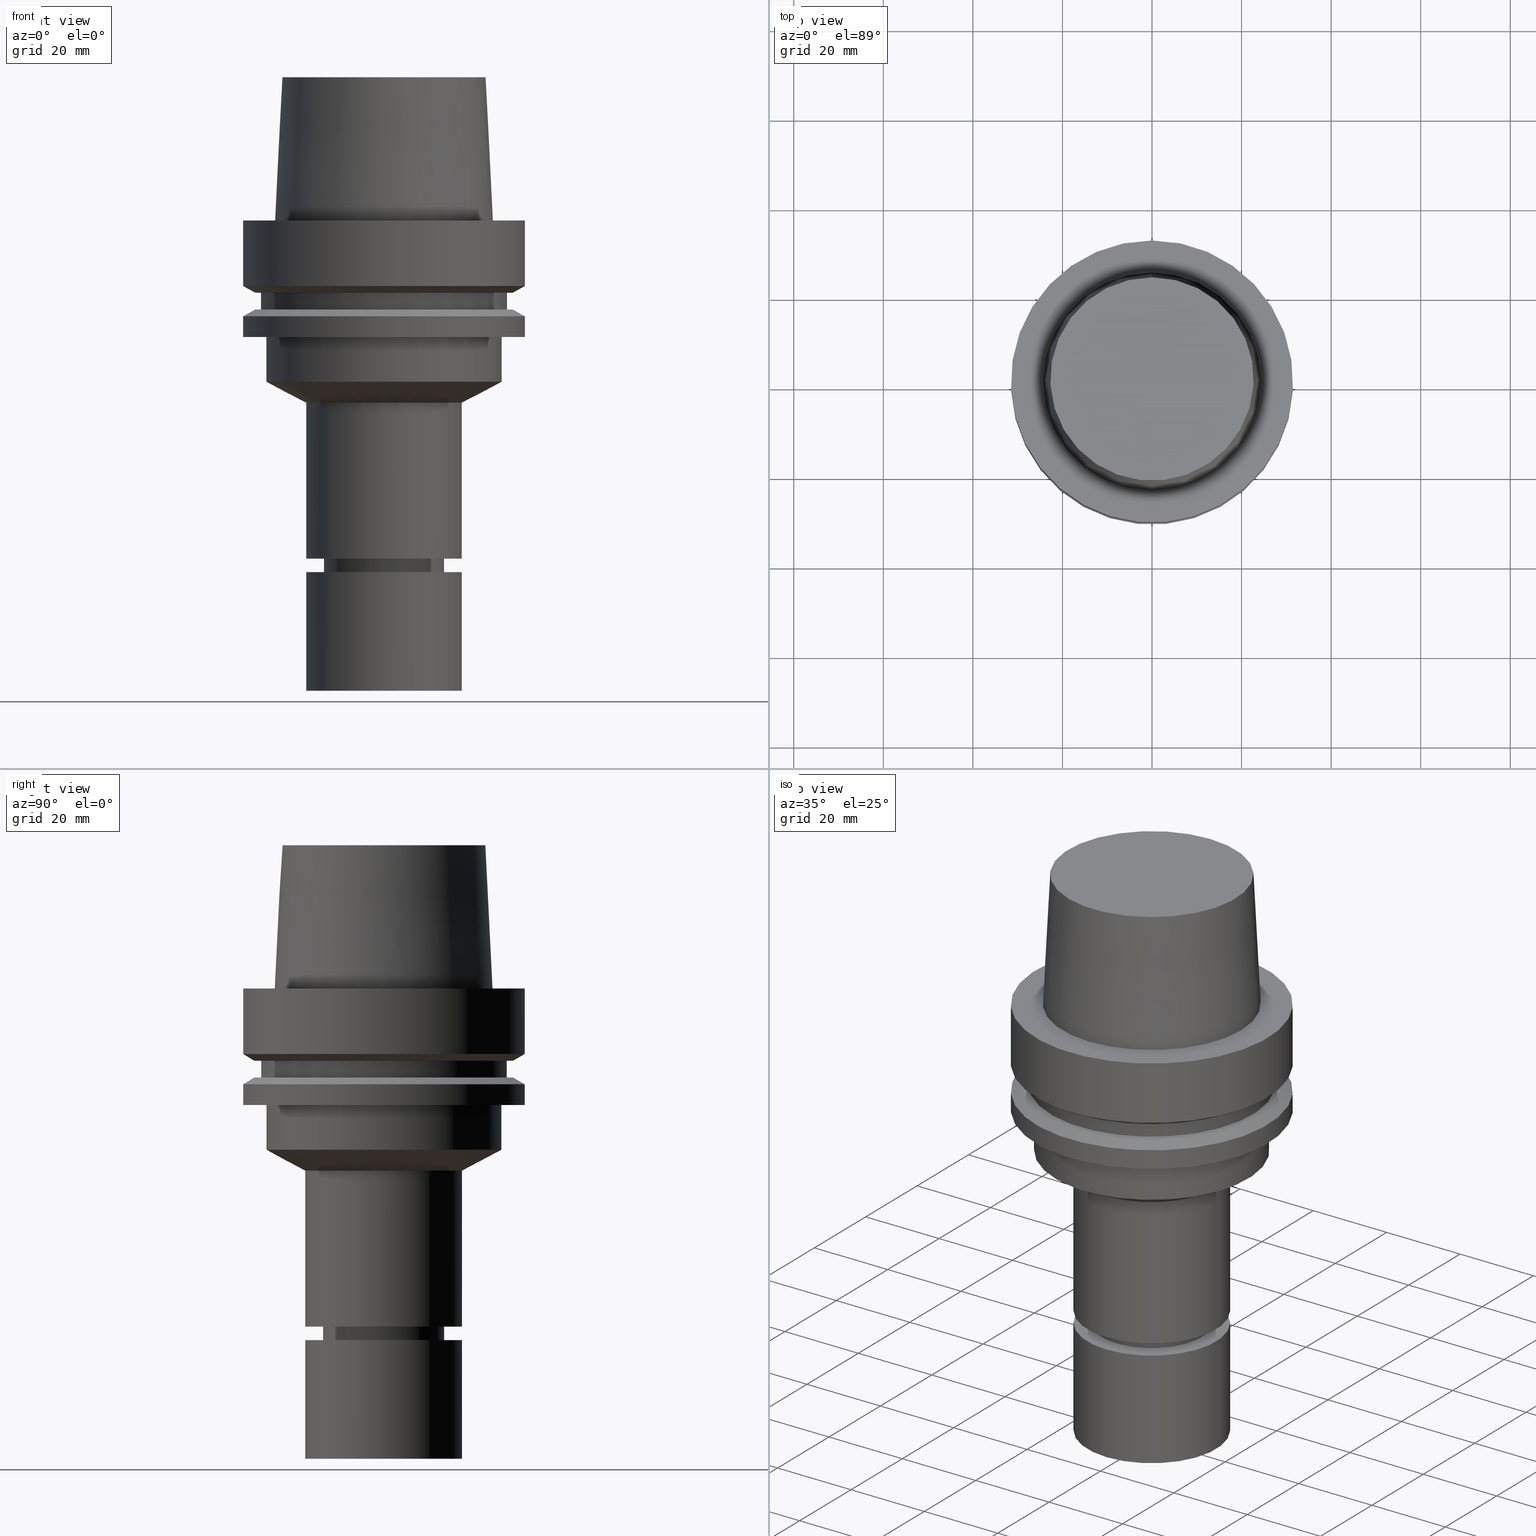
[diagram: canonical four-view strip — front | top / right | iso, engineering-drawing reading convention]
A machine part, canonical four-view strip (front | top / right | iso — engineering-drawing reading convention). The complete STEP part file that produces these views, byte-faithful:
ISO-10303-21;
HEADER;
FILE_DESCRIPTION((''),'1');
FILE_NAME('V:/90_\X2\53D65F9730C730FC30BF\X0\/00_\X2\6DE18DEF30C730FC30BF\X0\/ALL/HSK-BKUS\X2\52A05DE556F3\X0\_201801/HSK-A63-MEGAER/HSK-A63-MEGAER20-105NL.stp','2018-02-01T02:42:17',(''),(''),'Spatial Interop R21 SP3','Kubotek KeyCreator 2011 V10.0.2 (22737)',' ');
FILE_SCHEMA(('automotive_design'));
ENDSEC;
DATA;
#1=MECHANICAL_DESIGN_GEOMETRIC_PRESENTATION_REPRESENTATION(' ',(#14,#15,#16,#17,#18,#19,#20,#21,#22,#23,#24,#25,#26,#27,#28,#29,#30,#31,#32,#33,#34,#35,#36,#37,#38,#39,#40,#41,#42,#43,#44,#45,#46,#47,#48,#49,#50,#51,#52,#53,#54,#55,#56,#57,#58,#59),#10);
#2=PRODUCT_DEFINITION_CONTEXT('',#60,'design');
#3=APPLICATION_PROTOCOL_DEFINITION('INTERNATIONAL STANDARD','automotive_design',1994,#60);
#4=PRODUCT_CATEGORY_RELATIONSHIP('NONE','NONE',#61,#62);
#5=SHAPE_DEFINITION_REPRESENTATION(#63,#64);
#6=PRODUCT_DEFINITION_CONTEXT('',#65,'design');
#7=APPLICATION_PROTOCOL_DEFINITION('INTERNATIONAL STANDARD','automotive_design',1994,#65);
#8=PRODUCT_CATEGORY_RELATIONSHIP('NONE','NONE',#66,#67);
#9=SHAPE_DEFINITION_REPRESENTATION(#68,#69);
#10= (GEOMETRIC_REPRESENTATION_CONTEXT(3)GLOBAL_UNCERTAINTY_ASSIGNED_CONTEXT((#72))GLOBAL_UNIT_ASSIGNED_CONTEXT((#74,#75,#76))REPRESENTATION_CONTEXT('NONE','WORKSPACE'));
#14=STYLED_ITEM('',(#78,#79),#80);
#15=STYLED_ITEM('',(#81,#82),#83);
#16=STYLED_ITEM('',(#84,#85),#86);
#17=STYLED_ITEM('',(#87,#88),#89);
#18=STYLED_ITEM('',(#90,#91),#92);
#19=STYLED_ITEM('',(#93),#94);
#20=STYLED_ITEM('',(#95,#96),#97);
#21=STYLED_ITEM('',(#98,#99),#100);
#22=STYLED_ITEM('',(#101),#102);
#23=STYLED_ITEM('',(#103),#104);
#24=STYLED_ITEM('',(#105,#106),#107);
#25=STYLED_ITEM('',(#108),#109);
#26=STYLED_ITEM('',(#110),#111);
#27=STYLED_ITEM('',(#112),#113);
#28=STYLED_ITEM('',(#114),#115);
#29=STYLED_ITEM('',(#116,#117),#118);
#30=STYLED_ITEM('',(#119,#120),#121);
#31=STYLED_ITEM('',(#122),#123);
#32=STYLED_ITEM('',(#124,#125),#126);
#33=STYLED_ITEM('',(#127,#128),#129);
#34=STYLED_ITEM('',(#130,#131),#132);
#35=STYLED_ITEM('',(#133,#134),#135);
#36=STYLED_ITEM('',(#136,#137),#138);
#37=STYLED_ITEM('',(#139,#140),#141);
#38=STYLED_ITEM('',(#142,#143),#144);
#39=STYLED_ITEM('',(#145,#146),#147);
#40=STYLED_ITEM('',(#148),#149);
#41=STYLED_ITEM('',(#150),#151);
#42=STYLED_ITEM('',(#152),#153);
#43=STYLED_ITEM('',(#154,#155),#156);
#44=STYLED_ITEM('',(#157),#158);
#45=STYLED_ITEM('',(#159),#160);
#46=STYLED_ITEM('',(#161),#162);
#47=STYLED_ITEM('',(#163,#164),#165);
#48=STYLED_ITEM('',(#166,#167),#168);
#49=STYLED_ITEM('',(#169),#170);
#50=STYLED_ITEM('',(#171,#172),#173);
#51=STYLED_ITEM('',(#174),#175);
#52=STYLED_ITEM('',(#176),#177);
#53=STYLED_ITEM('',(#178,#179),#180);
#54=STYLED_ITEM('',(#181),#182);
#55=STYLED_ITEM('',(#183),#184);
#56=STYLED_ITEM('',(#185),#186);
#57=STYLED_ITEM('',(#187,#188),#189);
#58=STYLED_ITEM('',(#190,#191),#192);
#59=STYLED_ITEM('',(#193),#194);
#60=APPLICATION_CONTEXT(' ');
#61=PRODUCT_CATEGORY('part','NONE');
#62=PRODUCT_RELATED_PRODUCT_CATEGORY('detail',' ',(#195));
#63=PRODUCT_DEFINITION_SHAPE('NONE','NONE',#196);
#64=ADVANCED_BREP_SHAPE_REPRESENTATION('Unnamed[1]',(#83,#197),#10);
#65=APPLICATION_CONTEXT(' ');
#66=PRODUCT_CATEGORY('part','NONE');
#67=PRODUCT_RELATED_PRODUCT_CATEGORY('detail',' ',(#198));
#68=PRODUCT_DEFINITION_SHAPE('NONE','NONE',#199);
#69=ADVANCED_BREP_SHAPE_REPRESENTATION('Unnamed[1]',(#141,#200),#10);
#72=UNCERTAINTY_MEASURE_WITH_UNIT(LENGTH_MEASURE(1.0E-006),#74,'','');
#74= (CONVERSION_BASED_UNIT('MILLIMETRE',#203)LENGTH_UNIT()NAMED_UNIT(#206));
#75= (NAMED_UNIT(#208)PLANE_ANGLE_UNIT()SI_UNIT($,.RADIAN.));
#76= (NAMED_UNIT(#208)SOLID_ANGLE_UNIT()SI_UNIT($,.STERADIAN.));
#78=PRESENTATION_STYLE_ASSIGNMENT((#214));
#79=PRESENTATION_STYLE_ASSIGNMENT((#215));
#80=ADVANCED_FACE('Unnamed[1]',(#216,#217),#218,.T.);
#81=PRESENTATION_STYLE_ASSIGNMENT((#219));
#82=PRESENTATION_STYLE_ASSIGNMENT((#220));
#83=MANIFOLD_SOLID_BREP('Unnamed[1]',#221);
#84=PRESENTATION_STYLE_ASSIGNMENT((#222));
#85=PRESENTATION_STYLE_ASSIGNMENT((#223));
#86=ADVANCED_FACE('Unnamed[1]',(#224,#225),#226,.T.);
#87=PRESENTATION_STYLE_ASSIGNMENT((#227));
#88=PRESENTATION_STYLE_ASSIGNMENT((#228));
#89=ADVANCED_FACE('Unnamed[1]',(#229,#230),#231,.T.);
#90=PRESENTATION_STYLE_ASSIGNMENT((#232));
#91=PRESENTATION_STYLE_ASSIGNMENT((#233));
#92=ADVANCED_FACE('Unnamed[1]',(#234,#235),#236,.T.);
#93=PRESENTATION_STYLE_ASSIGNMENT((#237));
#94=EDGE_CURVE('Unnamed[1]',#238,#238,#239,.T.);
#95=PRESENTATION_STYLE_ASSIGNMENT((#240));
#96=PRESENTATION_STYLE_ASSIGNMENT((#241));
#97=ADVANCED_FACE('Unnamed[1]',(#242,#243),#244,.T.);
#98=PRESENTATION_STYLE_ASSIGNMENT((#245));
#99=PRESENTATION_STYLE_ASSIGNMENT((#246));
#100=ADVANCED_FACE('Unnamed[1]',(#247),#248,.T.);
#101=PRESENTATION_STYLE_ASSIGNMENT((#249));
#102=EDGE_CURVE('Unnamed[1]',#250,#250,#251,.T.);
#103=PRESENTATION_STYLE_ASSIGNMENT((#252));
#104=EDGE_CURVE('Unnamed[1]',#253,#253,#254,.T.);
#105=PRESENTATION_STYLE_ASSIGNMENT((#255));
#106=PRESENTATION_STYLE_ASSIGNMENT((#256));
#107=ADVANCED_FACE('Unnamed[1]',(#257,#258),#259,.T.);
#108=PRESENTATION_STYLE_ASSIGNMENT((#260));
#109=EDGE_CURVE('Unnamed[1]',#261,#261,#262,.T.);
#110=PRESENTATION_STYLE_ASSIGNMENT((#263));
#111=EDGE_CURVE('Unnamed[1]',#264,#264,#265,.T.);
#112=PRESENTATION_STYLE_ASSIGNMENT((#266));
#113=EDGE_CURVE('Unnamed[1]',#267,#267,#268,.T.);
#114=PRESENTATION_STYLE_ASSIGNMENT((#269));
#115=EDGE_CURVE('Unnamed[1]',#270,#270,#271,.T.);
#116=PRESENTATION_STYLE_ASSIGNMENT((#272));
#117=PRESENTATION_STYLE_ASSIGNMENT((#273));
#118=ADVANCED_FACE('Unnamed[1]',(#274,#275),#276,.T.);
#119=PRESENTATION_STYLE_ASSIGNMENT((#277));
#120=PRESENTATION_STYLE_ASSIGNMENT((#278));
#121=ADVANCED_FACE('Unnamed[1]',(#279,#280),#281,.T.);
#122=PRESENTATION_STYLE_ASSIGNMENT((#282));
#123=EDGE_CURVE('Unnamed[1]',#283,#283,#284,.T.);
#124=PRESENTATION_STYLE_ASSIGNMENT((#285));
#125=PRESENTATION_STYLE_ASSIGNMENT((#286));
#126=ADVANCED_FACE('Unnamed[1]',(#287,#288),#289,.T.);
#127=PRESENTATION_STYLE_ASSIGNMENT((#290));
#128=PRESENTATION_STYLE_ASSIGNMENT((#291));
#129=ADVANCED_FACE('Unnamed[1]',(#292,#293),#294,.T.);
#130=PRESENTATION_STYLE_ASSIGNMENT((#295));
#131=PRESENTATION_STYLE_ASSIGNMENT((#296));
#132=ADVANCED_FACE('Unnamed[1]',(#297,#298),#299,.T.);
#133=PRESENTATION_STYLE_ASSIGNMENT((#300));
#134=PRESENTATION_STYLE_ASSIGNMENT((#301));
#135=ADVANCED_FACE('Unnamed[1]',(#302,#303),#304,.T.);
#136=PRESENTATION_STYLE_ASSIGNMENT((#305));
#137=PRESENTATION_STYLE_ASSIGNMENT((#306));
#138=ADVANCED_FACE('Unnamed[1]',(#307),#308,.T.);
#139=PRESENTATION_STYLE_ASSIGNMENT((#309));
#140=PRESENTATION_STYLE_ASSIGNMENT((#310));
#141=MANIFOLD_SOLID_BREP('Unnamed[1]',#311);
#142=PRESENTATION_STYLE_ASSIGNMENT((#312));
#143=PRESENTATION_STYLE_ASSIGNMENT((#313));
#144=ADVANCED_FACE('Unnamed[1]',(#314,#315),#316,.T.);
#145=PRESENTATION_STYLE_ASSIGNMENT((#317));
#146=PRESENTATION_STYLE_ASSIGNMENT((#318));
#147=ADVANCED_FACE('Unnamed[1]',(#319,#320),#321,.T.);
#148=PRESENTATION_STYLE_ASSIGNMENT((#322));
#149=EDGE_CURVE('Unnamed[1]',#323,#323,#324,.T.);
#150=PRESENTATION_STYLE_ASSIGNMENT((#325));
#151=EDGE_CURVE('Unnamed[1]',#326,#326,#327,.T.);
#152=PRESENTATION_STYLE_ASSIGNMENT((#328));
#153=EDGE_CURVE('Unnamed[1]',#329,#329,#330,.T.);
#154=PRESENTATION_STYLE_ASSIGNMENT((#331));
#155=PRESENTATION_STYLE_ASSIGNMENT((#332));
#156=ADVANCED_FACE('Unnamed[1]',(#333),#334,.T.);
#157=PRESENTATION_STYLE_ASSIGNMENT((#335));
#158=EDGE_CURVE('Unnamed[1]',#336,#336,#337,.T.);
#159=PRESENTATION_STYLE_ASSIGNMENT((#338));
#160=EDGE_CURVE('Unnamed[1]',#339,#339,#340,.T.);
#161=PRESENTATION_STYLE_ASSIGNMENT((#341));
#162=EDGE_CURVE('Unnamed[1]',#342,#342,#343,.T.);
#163=PRESENTATION_STYLE_ASSIGNMENT((#344));
#164=PRESENTATION_STYLE_ASSIGNMENT((#345));
#165=ADVANCED_FACE('Unnamed[1]',(#346),#347,.T.);
#166=PRESENTATION_STYLE_ASSIGNMENT((#348));
#167=PRESENTATION_STYLE_ASSIGNMENT((#349));
#168=ADVANCED_FACE('Unnamed[1]',(#350,#351),#352,.T.);
#169=PRESENTATION_STYLE_ASSIGNMENT((#353));
#170=EDGE_CURVE('Unnamed[1]',#354,#354,#355,.T.);
#171=PRESENTATION_STYLE_ASSIGNMENT((#356));
#172=PRESENTATION_STYLE_ASSIGNMENT((#357));
#173=ADVANCED_FACE('Unnamed[1]',(#358,#359),#360,.T.);
#174=PRESENTATION_STYLE_ASSIGNMENT((#361));
#175=EDGE_CURVE('Unnamed[1]',#362,#362,#363,.T.);
#176=PRESENTATION_STYLE_ASSIGNMENT((#364));
#177=EDGE_CURVE('Unnamed[1]',#365,#365,#366,.T.);
#178=PRESENTATION_STYLE_ASSIGNMENT((#367));
#179=PRESENTATION_STYLE_ASSIGNMENT((#368));
#180=ADVANCED_FACE('Unnamed[1]',(#369,#370),#371,.T.);
#181=PRESENTATION_STYLE_ASSIGNMENT((#372));
#182=EDGE_CURVE('Unnamed[1]',#373,#373,#374,.T.);
#183=PRESENTATION_STYLE_ASSIGNMENT((#375));
#184=EDGE_CURVE('Unnamed[1]',#376,#376,#377,.T.);
#185=PRESENTATION_STYLE_ASSIGNMENT((#378));
#186=EDGE_CURVE('Unnamed[1]',#379,#379,#380,.T.);
#187=PRESENTATION_STYLE_ASSIGNMENT((#381));
#188=PRESENTATION_STYLE_ASSIGNMENT((#382));
#189=ADVANCED_FACE('Unnamed[1]',(#383,#384),#385,.T.);
#190=PRESENTATION_STYLE_ASSIGNMENT((#386));
#191=PRESENTATION_STYLE_ASSIGNMENT((#387));
#192=ADVANCED_FACE('Unnamed[1]',(#388,#389),#390,.T.);
#193=PRESENTATION_STYLE_ASSIGNMENT((#391));
#194=EDGE_CURVE('Unnamed[1]',#392,#392,#393,.T.);
#195=PRODUCT('Unnamed[1]','Unnamed[1]','PART-Unnamed[1]-DESC',(#394));
#196=PRODUCT_DEFINITION('NONE','NONE',#395,#2);
#197=AXIS2_PLACEMENT_3D('',#396,#397,#398);
#198=PRODUCT('Unnamed[1]','Unnamed[1]','PART-Unnamed[1]-DESC',(#399));
#199=PRODUCT_DEFINITION('NONE','NONE',#400,#6);
#200=AXIS2_PLACEMENT_3D('',#401,#402,#403);
#203=LENGTH_MEASURE_WITH_UNIT(LENGTH_MEASURE(1.0),#404);
#206=DIMENSIONAL_EXPONENTS(1.0,0.0,0.0,0.0,0.0,0.0,0.0);
#208=DIMENSIONAL_EXPONENTS(0.0,0.0,0.0,0.0,0.0,0.0,0.0);
#214=SURFACE_STYLE_USAGE(.BOTH.,#405);
#215=CURVE_STYLE('',#406,POSITIVE_LENGTH_MEASURE(1000.0),#407);
#216=FACE_BOUND('',#408,.T.);
#217=FACE_BOUND('',#409,.T.);
#218=CYLINDRICAL_SURFACE('',#410,17.4999999999999);
#219=SURFACE_STYLE_USAGE(.BOTH.,#411);
#220=CURVE_STYLE('',#412,POSITIVE_LENGTH_MEASURE(1000.0),#413);
#221=CLOSED_SHELL('',(#156,#147,#168,#173,#132,#135,#80,#97,#89,#144,#180,#86,#118,#92,#126,#189,#129,#192,#121,#165));
#222=SURFACE_STYLE_USAGE(.BOTH.,#414);
#223=CURVE_STYLE('',#415,POSITIVE_LENGTH_MEASURE(1000.0),#416);
#224=FACE_BOUND('',#417,.T.);
#225=FACE_BOUND('',#418,.T.);
#226=CONICAL_SURFACE('',#419,30.1987976320959,1.04719755119657);
#227=SURFACE_STYLE_USAGE(.BOTH.,#420);
#228=CURVE_STYLE('',#421,POSITIVE_LENGTH_MEASURE(1000.0),#422);
#229=FACE_BOUND('',#423,.T.);
#230=FACE_BOUND('',#424,.T.);
#231=CYLINDRICAL_SURFACE('',#425,26.3);
#232=SURFACE_STYLE_USAGE(.BOTH.,#426);
#233=CURVE_STYLE('',#427,POSITIVE_LENGTH_MEASURE(1000.0),#428);
#234=FACE_BOUND('',#429,.T.);
#235=FACE_BOUND('',#430,.T.);
#236=CYLINDRICAL_SURFACE('',#431,27.4999999999994);
#237=CURVE_STYLE('',#432,POSITIVE_LENGTH_MEASURE(1000.0),#433);
#238=VERTEX_POINT('',#434);
#239=CIRCLE('',#435,13.5000000000005);
#240=SURFACE_STYLE_USAGE(.BOTH.,#436);
#241=CURVE_STYLE('',#437,POSITIVE_LENGTH_MEASURE(1000.0),#438);
#242=FACE_BOUND('',#439,.T.);
#243=FACE_BOUND('',#440,.T.);
#244=CONICAL_SURFACE('',#441,21.8999999999999,1.08379854829247);
#245=SURFACE_STYLE_USAGE(.BOTH.,#442);
#246=CURVE_STYLE('',#443,POSITIVE_LENGTH_MEASURE(1000.0),#444);
#247=FACE_OUTER_BOUND('',#445,.T.);
#248=PLANE('',#446);
#249=CURVE_STYLE('',#447,POSITIVE_LENGTH_MEASURE(1000.0),#448);
#250=VERTEX_POINT('',#449);
#251=CIRCLE('',#450,26.3);
#252=CURVE_STYLE('',#451,POSITIVE_LENGTH_MEASURE(1000.0),#452);
#253=VERTEX_POINT('',#453);
#254=CIRCLE('',#454,27.5);
#255=SURFACE_STYLE_USAGE(.BOTH.,#455);
#256=CURVE_STYLE('',#456,POSITIVE_LENGTH_MEASURE(1000.0),#457);
#257=FACE_BOUND('',#458,.T.);
#258=FACE_BOUND('',#459,.T.);
#259=CYLINDRICAL_SURFACE('',#460,17.5);
#260=CURVE_STYLE('',#461,POSITIVE_LENGTH_MEASURE(1000.0),#462);
#261=VERTEX_POINT('',#463);
#262=CIRCLE('',#464,17.5);
#263=CURVE_STYLE('',#465,POSITIVE_LENGTH_MEASURE(1000.0),#466);
#264=VERTEX_POINT('',#467);
#265=CIRCLE('',#468,17.4999999999999);
#266=CURVE_STYLE('',#469,POSITIVE_LENGTH_MEASURE(1000.0),#470);
#267=VERTEX_POINT('',#471);
#268=CIRCLE('',#472,26.3);
#269=CURVE_STYLE('',#473,POSITIVE_LENGTH_MEASURE(1000.0),#474);
#270=VERTEX_POINT('',#475);
#271=CIRCLE('',#476,12.4999999999998);
#272=SURFACE_STYLE_USAGE(.BOTH.,#477);
#273=CURVE_STYLE('',#478,POSITIVE_LENGTH_MEASURE(1000.0),#479);
#274=FACE_BOUND('',#480,.T.);
#275=FACE_OUTER_BOUND('',#481,.T.);
#276=PLANE('',#482);
#277=SURFACE_STYLE_USAGE(.BOTH.,#483);
#278=CURVE_STYLE('',#484,POSITIVE_LENGTH_MEASURE(1000.0),#485);
#279=FACE_BOUND('',#486,.T.);
#280=FACE_BOUND('',#487,.T.);
#281=CONICAL_SURFACE('',#488,23.515,0.0499583957219433);
#282=CURVE_STYLE('',#489,POSITIVE_LENGTH_MEASURE(1000.0),#490);
#283=VERTEX_POINT('',#491);
#284=CIRCLE('',#492,11.3999999999978);
#285=SURFACE_STYLE_USAGE(.BOTH.,#493);
#286=CURVE_STYLE('',#494,POSITIVE_LENGTH_MEASURE(1000.0),#495);
#287=FACE_OUTER_BOUND('',#496,.T.);
#288=FACE_BOUND('',#497,.T.);
#289=PLANE('',#498);
#290=SURFACE_STYLE_USAGE(.BOTH.,#499);
#291=CURVE_STYLE('',#500,POSITIVE_LENGTH_MEASURE(1000.0),#501);
#292=FACE_BOUND('',#502,.T.);
#293=FACE_BOUND('',#503,.T.);
#294=CYLINDRICAL_SURFACE('',#504,31.5);
#295=SURFACE_STYLE_USAGE(.BOTH.,#505);
#296=CURVE_STYLE('',#506,POSITIVE_LENGTH_MEASURE(1000.0),#507);
#297=FACE_BOUND('',#508,.T.);
#298=FACE_BOUND('',#509,.T.);
#299=CYLINDRICAL_SURFACE('',#510,13.4999999999956);
#300=SURFACE_STYLE_USAGE(.BOTH.,#511);
#301=CURVE_STYLE('',#512,POSITIVE_LENGTH_MEASURE(1000.0),#513);
#302=FACE_OUTER_BOUND('',#514,.T.);
#303=FACE_BOUND('',#515,.T.);
#304=PLANE('',#516);
#305=SURFACE_STYLE_USAGE(.BOTH.,#517);
#306=CURVE_STYLE('',#518,POSITIVE_LENGTH_MEASURE(1000.0),#519);
#307=FACE_OUTER_BOUND('',#520,.T.);
#308=PLANE('',#521);
#309=SURFACE_STYLE_USAGE(.BOTH.,#522);
#310=CURVE_STYLE('',#523,POSITIVE_LENGTH_MEASURE(1000.0),#524);
#311=CLOSED_SHELL('',(#138,#100,#107));
#312=SURFACE_STYLE_USAGE(.BOTH.,#525);
#313=CURVE_STYLE('',#526,POSITIVE_LENGTH_MEASURE(1000.0),#527);
#314=FACE_OUTER_BOUND('',#528,.T.);
#315=FACE_BOUND('',#529,.T.);
#316=PLANE('',#530);
#317=SURFACE_STYLE_USAGE(.BOTH.,#531);
#318=CURVE_STYLE('',#532,POSITIVE_LENGTH_MEASURE(1000.0),#533);
#319=FACE_BOUND('',#534,.T.);
#320=FACE_BOUND('',#535,.T.);
#321=CONICAL_SURFACE('',#536,11.9499999999988,0.523598775598648);
#322=CURVE_STYLE('',#537,POSITIVE_LENGTH_MEASURE(1000.0),#538);
#323=VERTEX_POINT('',#539);
#324=CIRCLE('',#540,13.4999999999908);
#325=CURVE_STYLE('',#541,POSITIVE_LENGTH_MEASURE(1000.0),#542);
#326=VERTEX_POINT('',#543);
#327=CIRCLE('',#544,31.5);
#328=CURVE_STYLE('',#545,POSITIVE_LENGTH_MEASURE(1000.0),#546);
#329=VERTEX_POINT('',#547);
#330=CIRCLE('',#548,17.5);
#331=SURFACE_STYLE_USAGE(.BOTH.,#549);
#332=CURVE_STYLE('',#550,POSITIVE_LENGTH_MEASURE(1000.0),#551);
#333=FACE_OUTER_BOUND('',#552,.T.);
#334=PLANE('',#553);
#335=CURVE_STYLE('',#554,POSITIVE_LENGTH_MEASURE(1000.0),#555);
#336=VERTEX_POINT('',#556);
#337=CIRCLE('',#557,31.5);
#338=CURVE_STYLE('',#558,POSITIVE_LENGTH_MEASURE(1000.0),#559);
#339=VERTEX_POINT('',#560);
#340=CIRCLE('',#561,17.4999999999999);
#341=CURVE_STYLE('',#562,POSITIVE_LENGTH_MEASURE(1000.0),#563);
#342=VERTEX_POINT('',#564);
#343=CIRCLE('',#565,22.715);
#344=SURFACE_STYLE_USAGE(.BOTH.,#566);
#345=CURVE_STYLE('',#567,POSITIVE_LENGTH_MEASURE(1000.0),#568);
#346=FACE_OUTER_BOUND('',#569,.T.);
#347=PLANE('',#570);
#348=SURFACE_STYLE_USAGE(.BOTH.,#571);
#349=CURVE_STYLE('',#572,POSITIVE_LENGTH_MEASURE(1000.0),#573);
#350=FACE_BOUND('',#574,.T.);
#351=FACE_BOUND('',#575,.T.);
#352=CYLINDRICAL_SURFACE('',#576,12.4999999999999);
#353=CURVE_STYLE('',#577,POSITIVE_LENGTH_MEASURE(1000.0),#578);
#354=VERTEX_POINT('',#579);
#355=CIRCLE('',#580,28.8975952641919);
#356=SURFACE_STYLE_USAGE(.BOTH.,#581);
#357=CURVE_STYLE('',#582,POSITIVE_LENGTH_MEASURE(1000.0),#583);
#358=FACE_BOUND('',#584,.T.);
#359=FACE_BOUND('',#585,.T.);
#360=CONICAL_SURFACE('',#586,13.0000000000002,1.04719755119482);
#361=CURVE_STYLE('',#587,POSITIVE_LENGTH_MEASURE(1000.0),#588);
#362=VERTEX_POINT('',#589);
#363=CIRCLE('',#590,31.5000000000001);
#364=CURVE_STYLE('',#591,POSITIVE_LENGTH_MEASURE(1000.0),#592);
#365=VERTEX_POINT('',#593);
#366=CIRCLE('',#594,28.8975952641919);
#367=SURFACE_STYLE_USAGE(.BOTH.,#595);
#368=CURVE_STYLE('',#596,POSITIVE_LENGTH_MEASURE(1000.0),#597);
#369=FACE_BOUND('',#598,.T.);
#370=FACE_BOUND('',#599,.T.);
#371=CYLINDRICAL_SURFACE('',#600,31.4999999999999);
#372=CURVE_STYLE('',#601,POSITIVE_LENGTH_MEASURE(1000.0),#602);
#373=VERTEX_POINT('',#603);
#374=CIRCLE('',#604,12.4999999999999);
#375=CURVE_STYLE('',#605,POSITIVE_LENGTH_MEASURE(1000.0),#606);
#376=VERTEX_POINT('',#607);
#377=CIRCLE('',#608,24.315);
#378=CURVE_STYLE('',#609,POSITIVE_LENGTH_MEASURE(1000.0),#610);
#379=VERTEX_POINT('',#611);
#380=CIRCLE('',#612,31.4999999999998);
#381=SURFACE_STYLE_USAGE(.BOTH.,#613);
#382=CURVE_STYLE('',#614,POSITIVE_LENGTH_MEASURE(1000.0),#615);
#383=FACE_BOUND('',#616,.T.);
#384=FACE_BOUND('',#617,.T.);
#385=CONICAL_SURFACE('',#618,30.1987976320959,1.04719755119657);
#386=SURFACE_STYLE_USAGE(.BOTH.,#619);
#387=CURVE_STYLE('',#620,POSITIVE_LENGTH_MEASURE(1000.0),#621);
#388=FACE_BOUND('',#622,.T.);
#389=FACE_OUTER_BOUND('',#623,.T.);
#390=PLANE('',#624);
#391=CURVE_STYLE('',#625,POSITIVE_LENGTH_MEASURE(1000.0),#626);
#392=VERTEX_POINT('',#627);
#393=CIRCLE('',#628,27.4999999999989);
#394=PRODUCT_CONTEXT('',#60,'mechanical');
#395=PRODUCT_DEFINITION_FORMATION_WITH_SPECIFIED_SOURCE(' ','NONE',#195,.NOT_KNOWN.);
#396=CARTESIAN_POINT('',(0.0,0.0,0.0));
#397=DIRECTION('',(0.0,0.0,1.0));
#398=DIRECTION('',(1.0,0.0,0.0));
#399=PRODUCT_CONTEXT('',#65,'mechanical');
#400=PRODUCT_DEFINITION_FORMATION_WITH_SPECIFIED_SOURCE(' ','NONE',#198,.NOT_KNOWN.);
#401=CARTESIAN_POINT('',(0.0,0.0,0.0));
#402=DIRECTION('',(0.0,0.0,1.0));
#403=DIRECTION('',(1.0,0.0,0.0));
#404= (NAMED_UNIT(#206)LENGTH_UNIT()SI_UNIT(.MILLI.,.METRE.));
#405=SURFACE_SIDE_STYLE('',(#630));
#406=DRAUGHTING_PRE_DEFINED_CURVE_FONT('continuous');
#407=COLOUR_RGB('',0.0,1.0,0.0);
#408=EDGE_LOOP('',(#631));
#409=EDGE_LOOP('',(#632));
#410=AXIS2_PLACEMENT_3D('',#633,#634,#635);
#411=SURFACE_SIDE_STYLE('',(#636));
#412=DRAUGHTING_PRE_DEFINED_CURVE_FONT('continuous');
#413=COLOUR_RGB('',0.0,1.0,0.0);
#414=SURFACE_SIDE_STYLE('',(#637));
#415=DRAUGHTING_PRE_DEFINED_CURVE_FONT('continuous');
#416=COLOUR_RGB('',0.0,1.0,0.0);
#417=EDGE_LOOP('',(#638));
#418=EDGE_LOOP('',(#639));
#419=AXIS2_PLACEMENT_3D('',#640,#641,#642);
#420=SURFACE_SIDE_STYLE('',(#643));
#421=DRAUGHTING_PRE_DEFINED_CURVE_FONT('continuous');
#422=COLOUR_RGB('',0.0,1.0,0.0);
#423=EDGE_LOOP('',(#644));
#424=EDGE_LOOP('',(#645));
#425=AXIS2_PLACEMENT_3D('',#646,#647,#648);
#426=SURFACE_SIDE_STYLE('',(#649));
#427=DRAUGHTING_PRE_DEFINED_CURVE_FONT('continuous');
#428=COLOUR_RGB('',0.0,1.0,0.0);
#429=EDGE_LOOP('',(#650));
#430=EDGE_LOOP('',(#651));
#431=AXIS2_PLACEMENT_3D('',#652,#653,#654);
#432=DRAUGHTING_PRE_DEFINED_CURVE_FONT('continuous');
#433=COLOUR_RGB('',0.0,1.0,0.0);
#434=CARTESIAN_POINT('',(4.97955624228199E-015,13.5000000000005,-81.3223248654052));
#435=AXIS2_PLACEMENT_3D('',#655,#656,#657);
#436=SURFACE_SIDE_STYLE('',(#658));
#437=DRAUGHTING_PRE_DEFINED_CURVE_FONT('continuous');
#438=COLOUR_RGB('',0.0,1.0,0.0);
#439=EDGE_LOOP('',(#659));
#440=EDGE_LOOP('',(#660));
#441=AXIS2_PLACEMENT_3D('',#661,#662,#663);
#442=SURFACE_SIDE_STYLE('',(#664));
#443=DRAUGHTING_PRE_DEFINED_CURVE_FONT('continuous');
#444=COLOUR_RGB('',0.0,1.0,0.0);
#445=EDGE_LOOP('',(#665));
#446=AXIS2_PLACEMENT_3D('',#666,#667,#668);
#447=DRAUGHTING_PRE_DEFINED_CURVE_FONT('continuous');
#448=COLOUR_RGB('',0.0,1.0,0.0);
#449=CARTESIAN_POINT('',(1.59204083889154E-015,26.3,-25.9999999999997));
#450=AXIS2_PLACEMENT_3D('',#669,#670,#671);
#451=DRAUGHTING_PRE_DEFINED_CURVE_FONT('continuous');
#452=COLOUR_RGB('',0.0,1.0,0.0);
#453=CARTESIAN_POINT('',(9.87371481812537E-016,27.5,-16.1249999999997));
#454=AXIS2_PLACEMENT_3D('',#672,#673,#674);
#455=SURFACE_SIDE_STYLE('',(#675));
#456=DRAUGHTING_PRE_DEFINED_CURVE_FONT('continuous');
#457=COLOUR_RGB('',0.0,1.0,0.0);
#458=EDGE_LOOP('',(#676));
#459=EDGE_LOOP('',(#677));
#460=AXIS2_PLACEMENT_3D('',#678,#679,#680);
#461=DRAUGHTING_PRE_DEFINED_CURVE_FONT('continuous');
#462=COLOUR_RGB('',0.0,1.0,0.0);
#463=CARTESIAN_POINT('',(4.80673962098472E-015,17.5,-78.5000152587891));
#464=AXIS2_PLACEMENT_3D('',#681,#682,#683);
#465=DRAUGHTING_PRE_DEFINED_CURVE_FONT('continuous');
#466=COLOUR_RGB('',0.0,1.0,0.0);
#467=CARTESIAN_POINT('',(4.62304166678125E-015,17.4999999999999,-75.4999999999998));
#468=AXIS2_PLACEMENT_3D('',#684,#685,#686);
#469=DRAUGHTING_PRE_DEFINED_CURVE_FONT('continuous');
#470=COLOUR_RGB('',0.0,1.0,0.0);
#471=CARTESIAN_POINT('',(2.20436423846525E-015,26.3,-36.0000000000003));
#472=AXIS2_PLACEMENT_3D('',#687,#688,#689);
#473=DRAUGHTING_PRE_DEFINED_CURVE_FONT('continuous');
#474=COLOUR_RGB('',0.0,1.0,0.0);
#475=CARTESIAN_POINT('',(5.71265548768156E-015,12.4999999999998,-93.2947441116725));
#476=AXIS2_PLACEMENT_3D('',#690,#691,#692);
#477=SURFACE_SIDE_STYLE('',(#693));
#478=DRAUGHTING_PRE_DEFINED_CURVE_FONT('continuous');
#479=COLOUR_RGB('',0.0,1.0,0.0);
#480=EDGE_LOOP('',(#694));
#481=EDGE_LOOP('',(#695));
#482=AXIS2_PLACEMENT_3D('',#696,#697,#698);
#483=SURFACE_SIDE_STYLE('',(#699));
#484=DRAUGHTING_PRE_DEFINED_CURVE_FONT('continuous');
#485=COLOUR_RGB('',0.0,1.0,0.0);
#486=EDGE_LOOP('',(#700));
#487=EDGE_LOOP('',(#701));
#488=AXIS2_PLACEMENT_3D('',#702,#703,#704);
#489=DRAUGHTING_PRE_DEFINED_CURVE_FONT('continuous');
#490=COLOUR_RGB('',0.0,1.0,0.0);
#491=CARTESIAN_POINT('',(5.82931876394142E-015,11.3999999999978,-95.2000000000003));
#492=AXIS2_PLACEMENT_3D('',#705,#706,#707);
#493=SURFACE_SIDE_STYLE('',(#708));
#494=DRAUGHTING_PRE_DEFINED_CURVE_FONT('continuous');
#495=COLOUR_RGB('',0.0,1.0,0.0);
#496=EDGE_LOOP('',(#709));
#497=EDGE_LOOP('',(#710));
#498=AXIS2_PLACEMENT_3D('',#711,#712,#713);
#499=SURFACE_SIDE_STYLE('',(#714));
#500=DRAUGHTING_PRE_DEFINED_CURVE_FONT('continuous');
#501=COLOUR_RGB('',0.0,1.0,0.0);
#502=EDGE_LOOP('',(#715));
#503=EDGE_LOOP('',(#716));
#504=AXIS2_PLACEMENT_3D('',#717,#718,#719);
#505=SURFACE_SIDE_STYLE('',(#720));
#506=DRAUGHTING_PRE_DEFINED_CURVE_FONT('continuous');
#507=COLOUR_RGB('',0.0,1.0,0.0);
#508=EDGE_LOOP('',(#721));
#509=EDGE_LOOP('',(#722));
#510=AXIS2_PLACEMENT_3D('',#723,#724,#725);
#511=SURFACE_SIDE_STYLE('',(#726));
#512=DRAUGHTING_PRE_DEFINED_CURVE_FONT('continuous');
#513=COLOUR_RGB('',0.0,1.0,0.0);
#514=EDGE_LOOP('',(#727));
#515=EDGE_LOOP('',(#728));
#516=AXIS2_PLACEMENT_3D('',#729,#730,#731);
#517=SURFACE_SIDE_STYLE('',(#732));
#518=DRAUGHTING_PRE_DEFINED_CURVE_FONT('continuous');
#519=COLOUR_RGB('',0.0,1.0,0.0);
#520=EDGE_LOOP('',(#733));
#521=AXIS2_PLACEMENT_3D('',#734,#735,#736);
#522=SURFACE_SIDE_STYLE('',(#737));
#523=DRAUGHTING_PRE_DEFINED_CURVE_FONT('continuous');
#524=COLOUR_RGB('',0.0,1.0,0.0);
#525=SURFACE_SIDE_STYLE('',(#738));
#526=DRAUGHTING_PRE_DEFINED_CURVE_FONT('continuous');
#527=COLOUR_RGB('',0.0,1.0,0.0);
#528=EDGE_LOOP('',(#739));
#529=EDGE_LOOP('',(#740));
#530=AXIS2_PLACEMENT_3D('',#741,#742,#743);
#531=SURFACE_SIDE_STYLE('',(#744));
#532=DRAUGHTING_PRE_DEFINED_CURVE_FONT('continuous');
#533=COLOUR_RGB('',0.0,1.0,0.0);
#534=EDGE_LOOP('',(#745));
#535=EDGE_LOOP('',(#746));
#536=AXIS2_PLACEMENT_3D('',#747,#748,#749);
#537=DRAUGHTING_PRE_DEFINED_CURVE_FONT('continuous');
#538=COLOUR_RGB('',0.0,1.0,0.0);
#539=CARTESIAN_POINT('',(4.62304166678125E-015,13.4999999999908,-75.4999999999998));
#540=AXIS2_PLACEMENT_3D('',#750,#751,#752);
#541=DRAUGHTING_PRE_DEFINED_CURVE_FONT('continuous');
#542=COLOUR_RGB('',0.0,1.0,0.0);
#543=CARTESIAN_POINT('',(1.30899429078397E-015,31.5,-21.3774990747592));
#544=AXIS2_PLACEMENT_3D('',#753,#754,#755);
#545=DRAUGHTING_PRE_DEFINED_CURVE_FONT('continuous');
#546=COLOUR_RGB('',0.0,1.0,0.0);
#547=CARTESIAN_POINT('',(6.4293956955236E-015,17.5,-105.0));
#548=AXIS2_PLACEMENT_3D('',#756,#757,#758);
#549=SURFACE_SIDE_STYLE('',(#759));
#550=DRAUGHTING_PRE_DEFINED_CURVE_FONT('continuous');
#551=COLOUR_RGB('',0.0,1.0,0.0);
#552=EDGE_LOOP('',(#760));
#553=AXIS2_PLACEMENT_3D('',#761,#762,#763);
#554=DRAUGHTING_PRE_DEFINED_CURVE_FONT('continuous');
#555=COLOUR_RGB('',0.0,1.0,0.0);
#556=CARTESIAN_POINT('',(8.95369947681261E-016,31.5,-14.6225009252407));
#557=AXIS2_PLACEMENT_3D('',#764,#765,#766);
#558=DRAUGHTING_PRE_DEFINED_CURVE_FONT('continuous');
#559=COLOUR_RGB('',0.0,1.0,0.0);
#560=CARTESIAN_POINT('',(2.48970289259618E-015,17.4999999999999,-40.6599338573311));
#561=AXIS2_PLACEMENT_3D('',#767,#768,#769);
#562=DRAUGHTING_PRE_DEFINED_CURVE_FONT('continuous');
#563=COLOUR_RGB('',0.0,1.0,0.0);
#564=CARTESIAN_POINT('',(-1.95943487863576E-015,22.715,32.0));
#565=AXIS2_PLACEMENT_3D('',#770,#771,#772);
#566=SURFACE_SIDE_STYLE('',(#773));
#567=DRAUGHTING_PRE_DEFINED_CURVE_FONT('continuous');
#568=COLOUR_RGB('',0.0,1.0,0.0);
#569=EDGE_LOOP('',(#774));
#570=AXIS2_PLACEMENT_3D('',#775,#776,#777);
#571=SURFACE_SIDE_STYLE('',(#778));
#572=DRAUGHTING_PRE_DEFINED_CURVE_FONT('continuous');
#573=COLOUR_RGB('',0.0,1.0,0.0);
#574=EDGE_LOOP('',(#779));
#575=EDGE_LOOP('',(#780));
#576=AXIS2_PLACEMENT_3D('',#781,#782,#783);
#577=DRAUGHTING_PRE_DEFINED_CURVE_FONT('continuous');
#578=COLOUR_RGB('',0.0,1.0,0.0);
#579=CARTESIAN_POINT('',(9.87371481812551E-016,28.8975952641919,-16.125));
#580=AXIS2_PLACEMENT_3D('',#784,#785,#786);
#581=SURFACE_SIDE_STYLE('',(#787));
#582=DRAUGHTING_PRE_DEFINED_CURVE_FONT('continuous');
#583=COLOUR_RGB('',0.0,1.0,0.0);
#584=EDGE_LOOP('',(#788));
#585=EDGE_LOOP('',(#789));
#586=AXIS2_PLACEMENT_3D('',#790,#791,#792);
#587=DRAUGHTING_PRE_DEFINED_CURVE_FONT('continuous');
#588=COLOUR_RGB('',0.0,1.0,0.0);
#589=CARTESIAN_POINT('',(-3.88267476788467E-031,31.5000000000001,3.85763741731417E-015));
#590=AXIS2_PLACEMENT_3D('',#793,#794,#795);
#591=DRAUGHTING_PRE_DEFINED_CURVE_FONT('continuous');
#592=COLOUR_RGB('',0.0,1.0,0.0);
#593=CARTESIAN_POINT('',(1.21699275665268E-015,28.8975952641919,-19.875));
#594=AXIS2_PLACEMENT_3D('',#796,#797,#798);
#595=SURFACE_SIDE_STYLE('',(#799));
#596=DRAUGHTING_PRE_DEFINED_CURVE_FONT('continuous');
#597=COLOUR_RGB('',0.0,1.0,0.0);
#598=EDGE_LOOP('',(#800));
#599=EDGE_LOOP('',(#801));
#600=AXIS2_PLACEMENT_3D('',#802,#803,#804);
#601=DRAUGHTING_PRE_DEFINED_CURVE_FONT('continuous');
#602=COLOUR_RGB('',0.0,1.0,0.0);
#603=CARTESIAN_POINT('',(5.01490875023965E-015,12.4999999999999,-81.8996751345975));
#604=AXIS2_PLACEMENT_3D('',#805,#806,#807);
#605=DRAUGHTING_PRE_DEFINED_CURVE_FONT('continuous');
#606=COLOUR_RGB('',0.0,1.0,0.0);
#607=CARTESIAN_POINT('',(-2.99705514225764E-031,24.315,2.97772869212679E-015));
#608=AXIS2_PLACEMENT_3D('',#808,#809,#810);
#609=DRAUGHTING_PRE_DEFINED_CURVE_FONT('continuous');
#610=COLOUR_RGB('',0.0,1.0,0.0);
#611=CARTESIAN_POINT('',(1.59204083889155E-015,31.4999999999998,-25.9999999999999));
#612=AXIS2_PLACEMENT_3D('',#811,#812,#813);
#613=SURFACE_SIDE_STYLE('',(#814));
#614=DRAUGHTING_PRE_DEFINED_CURVE_FONT('continuous');
#615=COLOUR_RGB('',0.0,1.0,0.0);
#616=EDGE_LOOP('',(#815));
#617=EDGE_LOOP('',(#816));
#618=AXIS2_PLACEMENT_3D('',#817,#818,#819);
#619=SURFACE_SIDE_STYLE('',(#820));
#620=DRAUGHTING_PRE_DEFINED_CURVE_FONT('continuous');
#621=COLOUR_RGB('',0.0,1.0,0.0);
#622=EDGE_LOOP('',(#821));
#623=EDGE_LOOP('',(#822));
#624=AXIS2_PLACEMENT_3D('',#823,#824,#825);
#625=DRAUGHTING_PRE_DEFINED_CURVE_FONT('continuous');
#626=COLOUR_RGB('',0.0,1.0,0.0);
#627=CARTESIAN_POINT('',(1.21699275665276E-015,27.4999999999989,-19.8750000000013));
#628=AXIS2_PLACEMENT_3D('',#826,#827,#828);
#630=SURFACE_STYLE_FILL_AREA(#829);
#631=ORIENTED_EDGE('',*,*,#160,.F.);
#632=ORIENTED_EDGE('',*,*,#111,.T.);
#633=CARTESIAN_POINT('',(3.55637227968871E-015,7.11274455937743E-015,-58.0799669286655));
#634=DIRECTION('',(-6.12323399573676E-017,-1.22464679914735E-016,1.0));
#635=DIRECTION('',(-1.23259516440783E-032,1.0,1.22464679914735E-016));
#636=SURFACE_STYLE_FILL_AREA(#830);
#637=SURFACE_STYLE_FILL_AREA(#831);
#638=ORIENTED_EDGE('',*,*,#177,.F.);
#639=ORIENTED_EDGE('',*,*,#151,.T.);
#640=CARTESIAN_POINT('',(1.26299352371833E-015,2.52598704743665E-015,-20.6262495373796));
#641=DIRECTION('',(6.12323399573677E-017,1.22464679914735E-016,-1.0));
#642=DIRECTION('',(-1.23259516440783E-032,1.0,1.22464679914735E-016));
#643=SURFACE_STYLE_FILL_AREA(#832);
#644=ORIENTED_EDGE('',*,*,#102,.F.);
#645=ORIENTED_EDGE('',*,*,#113,.T.);
#646=CARTESIAN_POINT('',(1.8982025386784E-015,3.79640507735679E-015,-31.0));
#647=DIRECTION('',(-6.12323399573677E-017,-1.22464679914735E-016,1.0));
#648=DIRECTION('',(-1.23259516440783E-032,1.0,1.22464679914735E-016));
#649=SURFACE_STYLE_FILL_AREA(#833);
#650=ORIENTED_EDGE('',*,*,#104,.F.);
#651=ORIENTED_EDGE('',*,*,#194,.T.);
#652=CARTESIAN_POINT('',(1.10218211923265E-015,2.2043642384653E-015,-18.0000000000005));
#653=DIRECTION('',(-6.12323399573677E-017,-1.22464679914735E-016,1.0));
#654=DIRECTION('',(-1.23259516440783E-032,1.0,1.22464679914735E-016));
#655=CARTESIAN_POINT('',(4.97955624228199E-015,9.95911248456397E-015,-81.3223248654052));
#656=DIRECTION('',(-6.12323399573677E-017,-1.22464679914735E-016,1.0));
#657=DIRECTION('',(-1.23259516440783E-032,1.0,1.22464679914735E-016));
#658=SURFACE_STYLE_FILL_AREA(#834);
#659=ORIENTED_EDGE('',*,*,#113,.F.);
#660=ORIENTED_EDGE('',*,*,#160,.T.);
#661=CARTESIAN_POINT('',(2.34703356553072E-015,4.69406713106143E-015,-38.3299669286657));
#662=DIRECTION('',(-6.12323399573676E-017,-1.22464679914735E-016,1.0));
#663=DIRECTION('',(-1.23259516440783E-032,1.0,1.22464679914735E-016));
#664=SURFACE_STYLE_FILL_AREA(#835);
#665=ORIENTED_EDGE('',*,*,#109,.F.);
#666=CARTESIAN_POINT('',(4.80673962098472E-015,8.75000000000001,-78.5000152587891));
#667=DIRECTION('',(-6.12323399573677E-017,-1.22464679914735E-016,1.0));
#668=DIRECTION('',(1.23259516440783E-032,-1.0,-1.22464679914735E-016));
#669=CARTESIAN_POINT('',(1.59204083889154E-015,3.18408167778308E-015,-25.9999999999997));
#670=DIRECTION('',(-6.12323399573677E-017,-1.22464679914735E-016,1.0));
#671=DIRECTION('',(-1.23259516440783E-032,1.0,1.22464679914735E-016));
#672=CARTESIAN_POINT('',(9.87371481812538E-016,1.97474296362508E-015,-16.1249999999997));
#673=DIRECTION('',(-6.12323399573677E-017,-1.22464679914735E-016,1.0));
#674=DIRECTION('',(-1.23259516440783E-032,1.0,1.22464679914735E-016));
#675=SURFACE_STYLE_FILL_AREA(#836);
#676=ORIENTED_EDGE('',*,*,#153,.F.);
#677=ORIENTED_EDGE('',*,*,#109,.T.);
#678=CARTESIAN_POINT('',(5.61806765825416E-015,1.12361353165083E-014,-91.7500076293945));
#679=DIRECTION('',(6.12323399573677E-017,1.22464679914735E-016,-1.0));
#680=DIRECTION('',(-1.23259516440783E-032,1.0,1.22464679914735E-016));
#681=CARTESIAN_POINT('',(4.80673962098472E-015,9.61347924196944E-015,-78.5000152587891));
#682=DIRECTION('',(6.12323399573677E-017,1.22464679914735E-016,-1.0));
#683=DIRECTION('',(-1.23259516440783E-032,1.0,1.22464679914735E-016));
#684=CARTESIAN_POINT('',(4.62304166678125E-015,9.24608333356249E-015,-75.4999999999998));
#685=DIRECTION('',(-6.12323399573676E-017,-1.22464679914735E-016,1.0));
#686=DIRECTION('',(-1.23259516440783E-032,1.0,1.22464679914735E-016));
#687=CARTESIAN_POINT('',(2.20436423846525E-015,4.40872847693051E-015,-36.0000000000003));
#688=DIRECTION('',(-6.12323399573677E-017,-1.22464679914735E-016,1.0));
#689=DIRECTION('',(-1.23259516440783E-032,1.0,1.22464679914735E-016));
#690=CARTESIAN_POINT('',(5.71265548768156E-015,1.14253109753631E-014,-93.2947441116725));
#691=DIRECTION('',(-6.12323399573677E-017,-1.22464679914735E-016,1.0));
#692=DIRECTION('',(-1.23259516440783E-032,1.0,1.22464679914735E-016));
#693=SURFACE_STYLE_FILL_AREA(#837);
#694=ORIENTED_EDGE('',*,*,#194,.F.);
#695=ORIENTED_EDGE('',*,*,#177,.T.);
#696=CARTESIAN_POINT('',(1.21699275665272E-015,28.1987976320954,-19.8750000000006));
#697=DIRECTION('',(-6.12323399573677E-017,-9.58463617675421E-013,1.0));
#698=DIRECTION('',(-5.86937972270006E-029,1.0,9.58463617675421E-013));
#699=SURFACE_STYLE_FILL_AREA(#838);
#700=ORIENTED_EDGE('',*,*,#162,.F.);
#701=ORIENTED_EDGE('',*,*,#184,.T.);
#702=CARTESIAN_POINT('',(-9.79717439317882E-016,-1.95943487863576E-015,16.0));
#703=DIRECTION('',(6.12323399573677E-017,1.22464679914735E-016,-1.0));
#704=DIRECTION('',(-1.23259516440783E-032,1.0,1.22464679914735E-016));
#705=CARTESIAN_POINT('',(5.82931876394142E-015,1.16586375278828E-014,-95.2000000000003));
#706=DIRECTION('',(-6.12323399573677E-017,-1.22464679914735E-016,1.0));
#707=DIRECTION('',(-1.23259516440783E-032,1.0,1.22464679914735E-016));
#708=SURFACE_STYLE_FILL_AREA(#839);
#709=ORIENTED_EDGE('',*,*,#170,.F.);
#710=ORIENTED_EDGE('',*,*,#104,.T.);
#711=CARTESIAN_POINT('',(9.87371481812544E-016,28.1987976320959,-16.1249999999999));
#712=DIRECTION('',(6.12323399573677E-017,-1.65108768595307E-013,-1.0));
#713=DIRECTION('',(-1.01051690958394E-029,-1.0,1.65108768595307E-013));
#714=SURFACE_STYLE_FILL_AREA(#840);
#715=ORIENTED_EDGE('',*,*,#175,.F.);
#716=ORIENTED_EDGE('',*,*,#158,.T.);
#717=CARTESIAN_POINT('',(4.47684973840631E-016,8.95369947681262E-016,-7.31125046262035));
#718=DIRECTION('',(-6.12323399573677E-017,-1.22464679914735E-016,1.0));
#719=DIRECTION('',(-1.23259516440783E-032,1.0,1.22464679914735E-016));
#720=SURFACE_STYLE_FILL_AREA(#841);
#721=ORIENTED_EDGE('',*,*,#149,.F.);
#722=ORIENTED_EDGE('',*,*,#94,.T.);
#723=CARTESIAN_POINT('',(4.80129895453162E-015,9.60259790906323E-015,-78.4111624327025));
#724=DIRECTION('',(-6.12323399573677E-017,-1.22464679914735E-016,1.0));
#725=DIRECTION('',(-1.23259516440783E-032,1.0,1.22464679914735E-016));
#726=SURFACE_STYLE_FILL_AREA(#842);
#727=ORIENTED_EDGE('',*,*,#111,.F.);
#728=ORIENTED_EDGE('',*,*,#149,.T.);
#729=CARTESIAN_POINT('',(4.62304166678125E-015,15.4999999999954,-75.4999999999998));
#730=DIRECTION('',(6.12323399573677E-017,1.22464679914735E-016,-1.0));
#731=DIRECTION('',(1.23259516440783E-032,-1.0,-1.22464679914735E-016));
#732=SURFACE_STYLE_FILL_AREA(#843);
#733=ORIENTED_EDGE('',*,*,#153,.T.);
#734=CARTESIAN_POINT('',(6.4293956955236E-015,8.75000000000002,-105.0));
#735=DIRECTION('',(6.12323399573677E-017,1.22464679914735E-016,-1.0));
#736=DIRECTION('',(-1.23259516440783E-032,1.0,1.22464679914735E-016));
#737=SURFACE_STYLE_FILL_AREA(#844);
#738=SURFACE_STYLE_FILL_AREA(#845);
#739=ORIENTED_EDGE('',*,*,#186,.F.);
#740=ORIENTED_EDGE('',*,*,#102,.T.);
#741=CARTESIAN_POINT('',(1.59204083889155E-015,28.8999999999999,-25.9999999999998));
#742=DIRECTION('',(6.12323399573677E-017,-4.01871712910923E-014,-1.0));
#743=DIRECTION('',(-2.45592738169036E-030,-1.0,4.01871712910923E-014));
#744=SURFACE_STYLE_FILL_AREA(#846);
#745=ORIENTED_EDGE('',*,*,#115,.F.);
#746=ORIENTED_EDGE('',*,*,#123,.T.);
#747=CARTESIAN_POINT('',(5.77098712581149E-015,1.1541974251623E-014,-94.2473720558364));
#748=DIRECTION('',(-6.12323399573677E-017,-1.22464679914735E-016,1.0));
#749=DIRECTION('',(-1.23259516440783E-032,1.0,1.22464679914735E-016));
#750=CARTESIAN_POINT('',(4.62304166678125E-015,9.24608333356249E-015,-75.4999999999998));
#751=DIRECTION('',(-6.12323399573677E-017,-1.22464679914735E-016,1.0));
#752=DIRECTION('',(-1.23259516440783E-032,1.0,1.22464679914735E-016));
#753=CARTESIAN_POINT('',(1.30899429078397E-015,2.61798858156794E-015,-21.3774990747592));
#754=DIRECTION('',(-6.12323399573677E-017,-1.22464679914735E-016,1.0));
#755=DIRECTION('',(-1.23259516440783E-032,1.0,1.22464679914735E-016));
#756=CARTESIAN_POINT('',(6.4293956955236E-015,1.28587913910472E-014,-105.0));
#757=DIRECTION('',(6.12323399573677E-017,1.22464679914735E-016,-1.0));
#758=DIRECTION('',(-1.23259516440783E-032,1.0,1.22464679914735E-016));
#759=SURFACE_STYLE_FILL_AREA(#847);
#760=ORIENTED_EDGE('',*,*,#123,.F.);
#761=CARTESIAN_POINT('',(5.82931876394141E-015,5.69999999999889,-95.2000000000002));
#762=DIRECTION('',(6.12323399573677E-017,-1.60828959602311E-014,-1.0));
#763=DIRECTION('',(-9.79966200205076E-031,-1.0,1.60828959602311E-014));
#764=CARTESIAN_POINT('',(8.95369947681262E-016,1.79073989536252E-015,-14.6225009252407));
#765=DIRECTION('',(-6.12323399573677E-017,-1.22464679914735E-016,1.0));
#766=DIRECTION('',(-1.23259516440783E-032,1.0,1.22464679914735E-016));
#767=CARTESIAN_POINT('',(2.48970289259618E-015,4.97940578519236E-015,-40.6599338573311));
#768=DIRECTION('',(-6.12323399573676E-017,-1.22464679914735E-016,1.0));
#769=DIRECTION('',(-1.23259516440783E-032,1.0,1.22464679914735E-016));
#770=CARTESIAN_POINT('',(-1.95943487863576E-015,-3.91886975727153E-015,32.0));
#771=DIRECTION('',(-6.12323399573676E-017,-1.22464679914735E-016,1.0));
#772=DIRECTION('',(-1.23259516440783E-032,1.0,1.22464679914735E-016));
#773=SURFACE_STYLE_FILL_AREA(#848);
#774=ORIENTED_EDGE('',*,*,#162,.T.);
#775=CARTESIAN_POINT('',(-1.95943487863576E-015,11.3575,32.0));
#776=DIRECTION('',(-6.12323399573677E-017,9.72362339746437E-016,1.0));
#777=DIRECTION('',(5.47128686183263E-032,1.0,-9.72362339746437E-016));
#778=SURFACE_STYLE_FILL_AREA(#849);
#779=ORIENTED_EDGE('',*,*,#182,.F.);
#780=ORIENTED_EDGE('',*,*,#115,.T.);
#781=CARTESIAN_POINT('',(5.3637821189606E-015,1.07275642379212E-014,-87.597209623135));
#782=DIRECTION('',(-6.12323399573677E-017,-1.22464679914735E-016,1.0));
#783=DIRECTION('',(-1.23259516440783E-032,1.0,1.22464679914735E-016));
#784=CARTESIAN_POINT('',(9.87371481812552E-016,1.9747429636251E-015,-16.125));
#785=DIRECTION('',(-6.12323399573677E-017,-1.22464679914735E-016,1.0));
#786=DIRECTION('',(-1.23259516440783E-032,1.0,1.22464679914735E-016));
#787=SURFACE_STYLE_FILL_AREA(#850);
#788=ORIENTED_EDGE('',*,*,#94,.F.);
#789=ORIENTED_EDGE('',*,*,#182,.T.);
#790=CARTESIAN_POINT('',(4.99723249626082E-015,9.99446499252163E-015,-81.6110000000014));
#791=DIRECTION('',(-6.12323399573677E-017,-1.22464679914735E-016,1.0));
#792=DIRECTION('',(-1.23259516440783E-032,1.0,1.22464679914735E-016));
#793=CARTESIAN_POINT('',(0.0,0.0,0.0));
#794=DIRECTION('',(-6.12323399573677E-017,-1.22464679914735E-016,1.0));
#795=DIRECTION('',(-1.23259516440783E-032,1.0,1.22464679914735E-016));
#796=CARTESIAN_POINT('',(1.21699275665268E-015,2.43398551330536E-015,-19.875));
#797=DIRECTION('',(-6.12323399573677E-017,-1.22464679914735E-016,1.0));
#798=DIRECTION('',(-1.23259516440783E-032,1.0,1.22464679914735E-016));
#799=SURFACE_STYLE_FILL_AREA(#851);
#800=ORIENTED_EDGE('',*,*,#151,.F.);
#801=ORIENTED_EDGE('',*,*,#186,.T.);
#802=CARTESIAN_POINT('',(1.45051756483776E-015,2.90103512967552E-015,-23.6887495373796));
#803=DIRECTION('',(-6.12323399573677E-017,-1.22464679914735E-016,1.0));
#804=DIRECTION('',(-1.23259516440783E-032,1.0,1.22464679914735E-016));
#805=CARTESIAN_POINT('',(5.01490875023965E-015,1.00298175004793E-014,-81.8996751345975));
#806=DIRECTION('',(-6.12323399573677E-017,-1.22464679914735E-016,1.0));
#807=DIRECTION('',(-1.23259516440783E-032,1.0,1.22464679914735E-016));
#808=CARTESIAN_POINT('',(0.0,0.0,0.0));
#809=DIRECTION('',(-6.12323399573677E-017,-1.22464679914735E-016,1.0));
#810=DIRECTION('',(-1.23259516440783E-032,1.0,1.22464679914735E-016));
#811=CARTESIAN_POINT('',(1.59204083889155E-015,3.1840816777831E-015,-25.9999999999999));
#812=DIRECTION('',(-6.12323399573676E-017,-1.22464679914735E-016,1.0));
#813=DIRECTION('',(-1.23259516440783E-032,1.0,1.22464679914735E-016));
#814=SURFACE_STYLE_FILL_AREA(#852);
#815=ORIENTED_EDGE('',*,*,#158,.F.);
#816=ORIENTED_EDGE('',*,*,#170,.T.);
#817=CARTESIAN_POINT('',(9.41370714746907E-016,1.88274142949381E-015,-15.3737504626203));
#818=DIRECTION('',(-6.12323399573677E-017,-1.22464679914735E-016,1.0));
#819=DIRECTION('',(-1.23259516440783E-032,1.0,1.22464679914735E-016));
#820=SURFACE_STYLE_FILL_AREA(#853);
#821=ORIENTED_EDGE('',*,*,#184,.F.);
#822=ORIENTED_EDGE('',*,*,#175,.T.);
#823=CARTESIAN_POINT('',(-3.43986495507116E-031,27.9075,3.41768305472048E-015));
#824=DIRECTION('',(-6.12323399573677E-017,-1.22464679914735E-016,1.0));
#825=DIRECTION('',(-1.23259516440783E-032,1.0,1.22464679914735E-016));
#826=CARTESIAN_POINT('',(1.21699275665276E-015,2.43398551330552E-015,-19.8750000000013));
#827=DIRECTION('',(-6.12323399573677E-017,-1.22464679914735E-016,1.0));
#828=DIRECTION('',(-1.23259516440783E-032,1.0,1.22464679914735E-016));
#829=FILL_AREA_STYLE('',(#854));
#830=FILL_AREA_STYLE('',(#855));
#831=FILL_AREA_STYLE('',(#856));
#832=FILL_AREA_STYLE('',(#857));
#833=FILL_AREA_STYLE('',(#858));
#834=FILL_AREA_STYLE('',(#859));
#835=FILL_AREA_STYLE('',(#860));
#836=FILL_AREA_STYLE('',(#861));
#837=FILL_AREA_STYLE('',(#862));
#838=FILL_AREA_STYLE('',(#863));
#839=FILL_AREA_STYLE('',(#864));
#840=FILL_AREA_STYLE('',(#865));
#841=FILL_AREA_STYLE('',(#866));
#842=FILL_AREA_STYLE('',(#867));
#843=FILL_AREA_STYLE('',(#868));
#844=FILL_AREA_STYLE('',(#869));
#845=FILL_AREA_STYLE('',(#870));
#846=FILL_AREA_STYLE('',(#871));
#847=FILL_AREA_STYLE('',(#872));
#848=FILL_AREA_STYLE('',(#873));
#849=FILL_AREA_STYLE('',(#874));
#850=FILL_AREA_STYLE('',(#875));
#851=FILL_AREA_STYLE('',(#876));
#852=FILL_AREA_STYLE('',(#877));
#853=FILL_AREA_STYLE('',(#878));
#854=FILL_AREA_STYLE_COLOUR('',#879);
#855=FILL_AREA_STYLE_COLOUR('',#880);
#856=FILL_AREA_STYLE_COLOUR('',#881);
#857=FILL_AREA_STYLE_COLOUR('',#882);
#858=FILL_AREA_STYLE_COLOUR('',#883);
#859=FILL_AREA_STYLE_COLOUR('',#884);
#860=FILL_AREA_STYLE_COLOUR('',#885);
#861=FILL_AREA_STYLE_COLOUR('',#886);
#862=FILL_AREA_STYLE_COLOUR('',#887);
#863=FILL_AREA_STYLE_COLOUR('',#888);
#864=FILL_AREA_STYLE_COLOUR('',#889);
#865=FILL_AREA_STYLE_COLOUR('',#890);
#866=FILL_AREA_STYLE_COLOUR('',#891);
#867=FILL_AREA_STYLE_COLOUR('',#892);
#868=FILL_AREA_STYLE_COLOUR('',#893);
#869=FILL_AREA_STYLE_COLOUR('',#894);
#870=FILL_AREA_STYLE_COLOUR('',#895);
#871=FILL_AREA_STYLE_COLOUR('',#896);
#872=FILL_AREA_STYLE_COLOUR('',#897);
#873=FILL_AREA_STYLE_COLOUR('',#898);
#874=FILL_AREA_STYLE_COLOUR('',#899);
#875=FILL_AREA_STYLE_COLOUR('',#900);
#876=FILL_AREA_STYLE_COLOUR('',#901);
#877=FILL_AREA_STYLE_COLOUR('',#902);
#878=FILL_AREA_STYLE_COLOUR('',#903);
#879=COLOUR_RGB('',0.0,1.0,0.0);
#880=COLOUR_RGB('',0.0,1.0,0.0);
#881=COLOUR_RGB('',0.0,1.0,0.0);
#882=COLOUR_RGB('',0.0,1.0,0.0);
#883=COLOUR_RGB('',0.0,1.0,0.0);
#884=COLOUR_RGB('',0.0,1.0,0.0);
#885=COLOUR_RGB('',0.0,1.0,0.0);
#886=COLOUR_RGB('',0.0,1.0,0.0);
#887=COLOUR_RGB('',0.0,1.0,0.0);
#888=COLOUR_RGB('',0.0,1.0,0.0);
#889=COLOUR_RGB('',0.0,1.0,0.0);
#890=COLOUR_RGB('',0.0,1.0,0.0);
#891=COLOUR_RGB('',0.0,1.0,0.0);
#892=COLOUR_RGB('',0.0,1.0,0.0);
#893=COLOUR_RGB('',0.0,1.0,0.0);
#894=COLOUR_RGB('',0.0,1.0,0.0);
#895=COLOUR_RGB('',0.0,1.0,0.0);
#896=COLOUR_RGB('',0.0,1.0,0.0);
#897=COLOUR_RGB('',0.0,1.0,0.0);
#898=COLOUR_RGB('',0.0,1.0,0.0);
#899=COLOUR_RGB('',0.0,1.0,0.0);
#900=COLOUR_RGB('',0.0,1.0,0.0);
#901=COLOUR_RGB('',0.0,1.0,0.0);
#902=COLOUR_RGB('',0.0,1.0,0.0);
#903=COLOUR_RGB('',0.0,1.0,0.0);
ENDSEC;
END-ISO-10303-21;
